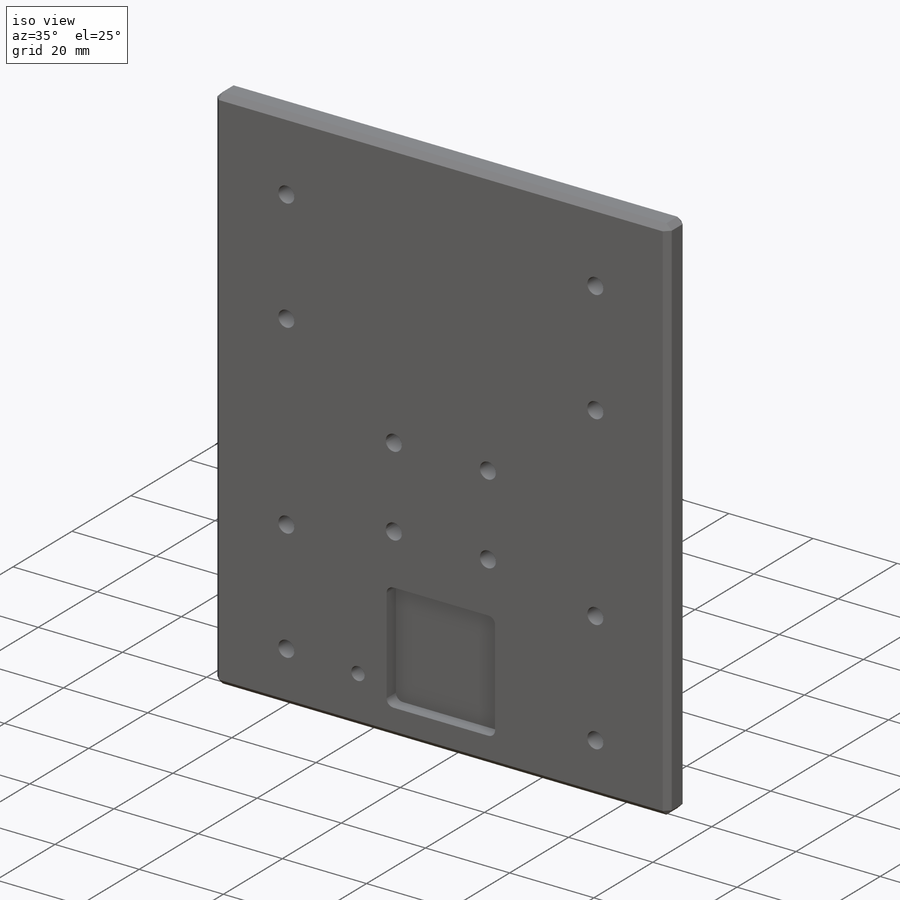
[diagram: iso view]
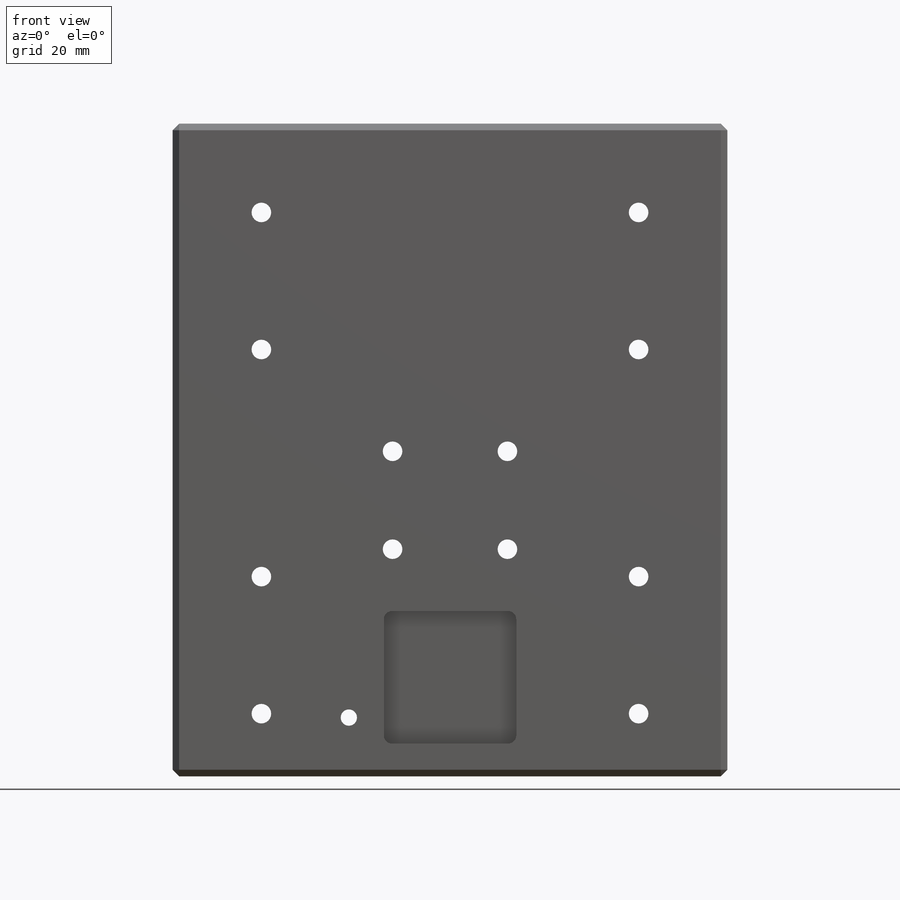
[diagram: front view]
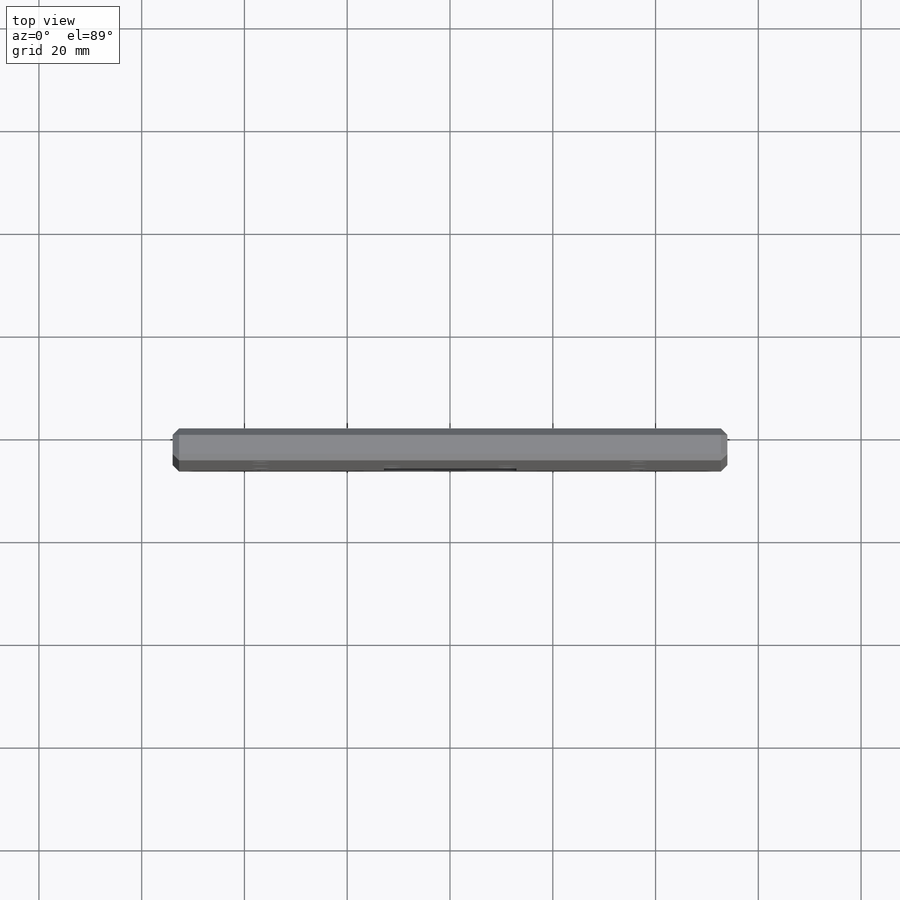
[diagram: top view]
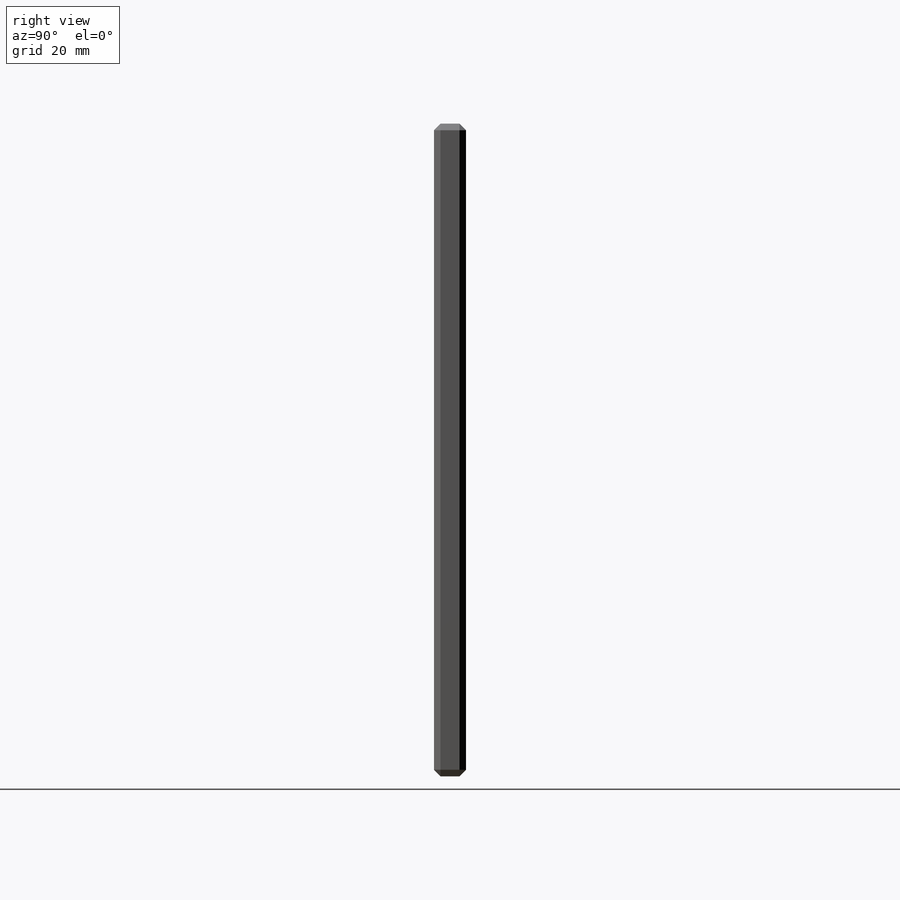
[diagram: right view]
SOLIDWORKS PART (.sldprt)
format: sldprt  version: not decoded by parser v0  size: 300,544 bytes
history: native  units: mm
features: thread x12, sketch x5, cut_extrude x4, material x1, extrude x1, chamfer x1, fillet x1 (+13 scaffold rows collapsed)
feature tree (38):
  scaffold x13  (default folders/planes/origin — collapsed)
  material  "Material <not specified>"
  sketch  "Sketch1"  dims[D1=107.95mm D2=127.0mm]
  extrude  "Boss-Extrude1"  Depth=6.223mm
  chamfer  "Chamfer1"  Distance=1.27mm Angle=45deg
  sketch  "Sketch2"  dims[D9=3.81mm D1=17.272mm D2=17.272mm D3=17.272mm D4=12.192mm D5=26.67mm D6=26.67mm D7=26.67mm D8=26.67mm]
  cut_extrude  "Cut-Extrude1"  [1 undecoded]
  thread  "Cosmetic Thread1"  Diameter=4.826mm  [1 undecoded]
  thread  "Cosmetic Thread2"  Diameter=4.826mm  [1 undecoded]
  thread  "Cosmetic Thread3"  Diameter=4.826mm  [1 undecoded]
  thread  "Cosmetic Thread4"  Diameter=4.826mm  [1 undecoded]
  thread  "Cosmetic Thread5"  Diameter=4.826mm  [1 undecoded]
  thread  "Cosmetic Thread6"  Diameter=4.826mm  [1 undecoded]
  thread  "Cosmetic Thread7"  Diameter=4.826mm  [1 undecoded]
  thread  "Cosmetic Thread8"  Diameter=4.826mm  [1 undecoded]
  sketch  "Sketch3"  dims[c1.D4=3.81mm c1.D1=22.352mm c1.D2=19.05mm c1.D3=44.196mm c2.D4=42.799mm]
  cut_extrude  "Cut-Extrude2"  [1 undecoded]
  thread  "Cosmetic Thread9"  Diameter=4.826mm  [1 undecoded]
  thread  "Cosmetic Thread10"  Diameter=4.826mm  [1 undecoded]
  thread  "Cosmetic Thread11"  Diameter=4.826mm  [1 undecoded]
  thread  "Cosmetic Thread12"  Diameter=4.826mm  [1 undecoded]
  sketch  "Sketch4"  dims[D1=25.781mm D2=25.781mm D3=6.35mm]
  cut_extrude  "Cut-Extrude3"  Depth=3.175mm
  fillet  "Fillet1"  Radius=1.5875mm
  sketch  "Sketch5"  dims[D1=3.175mm D2=11.43mm D3=34.29mm]
  cut_extrude  "Cut-Extrude4"  [1 undecoded]
decode coverage: 21 of 24 modeling features carry decoded parameters
note: 15 parameter values undecoded
summary: no parameter record found for 3 features
note: suppression state not decoded; provenance and decode notes live in map.json
